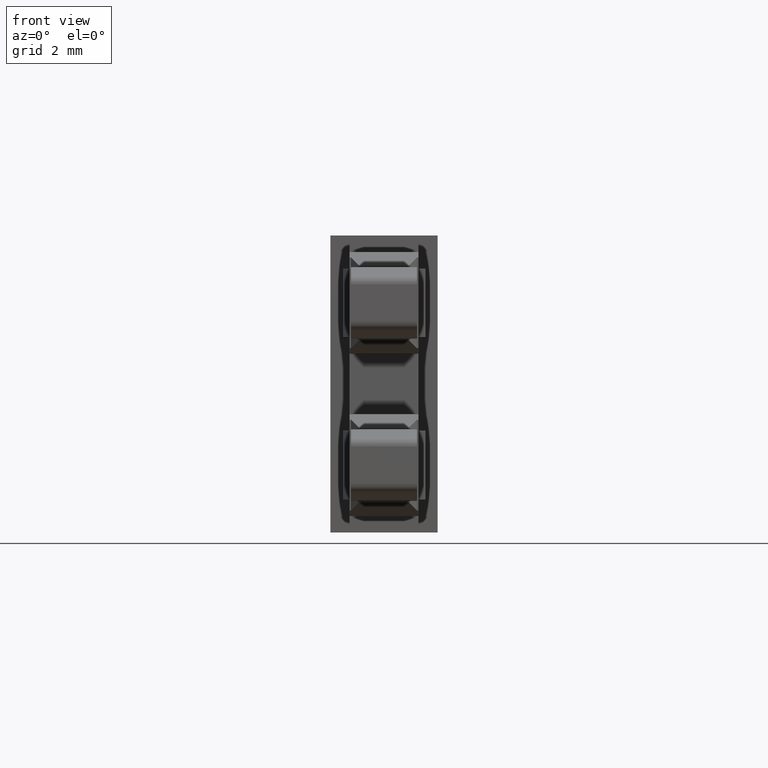
[diagram: clean part render]
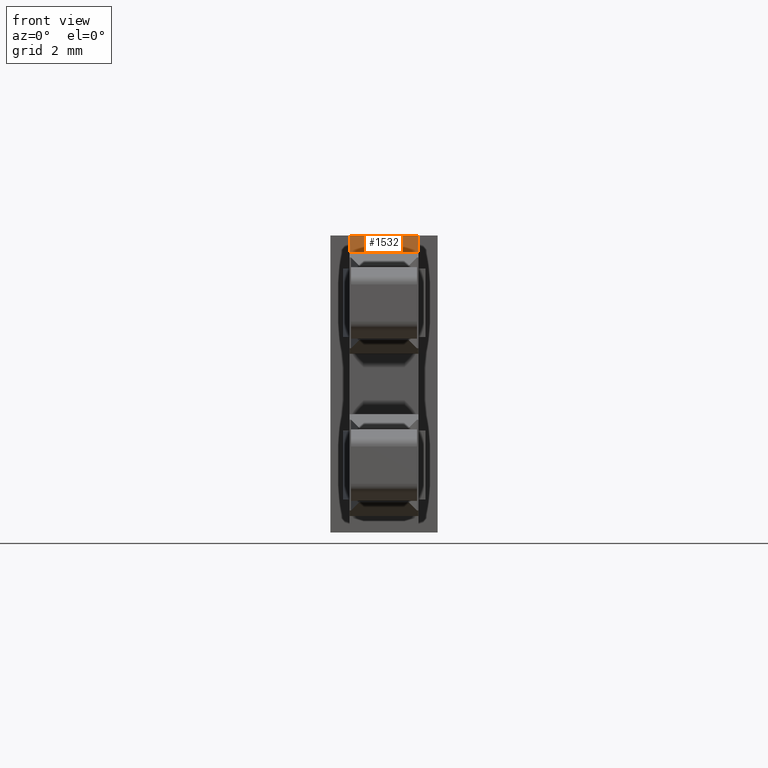
[diagram: same view with one face highlighted and labeled with its STEP entity id]
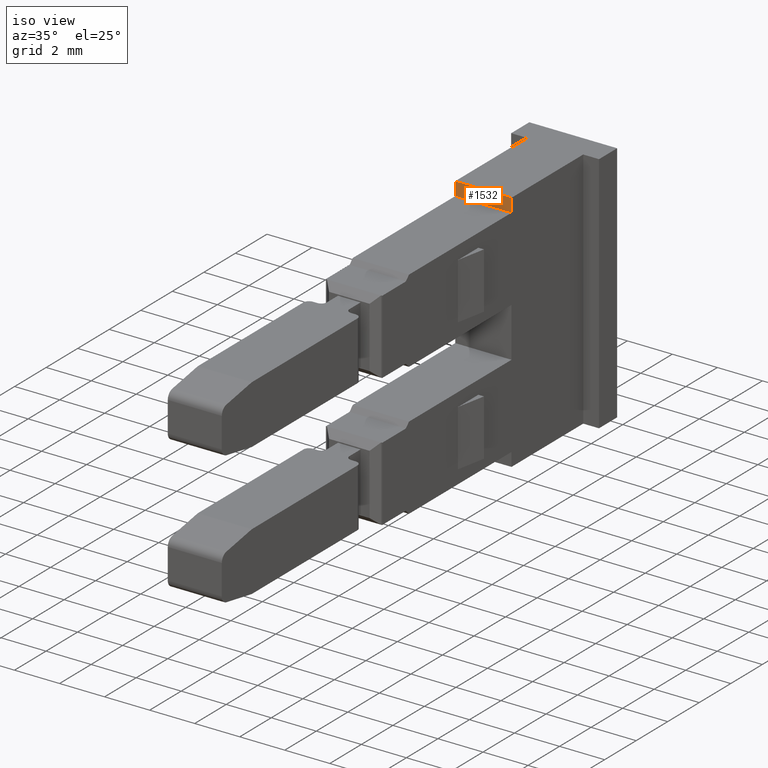
[diagram: same view with one face highlighted and labeled with its STEP entity id]
A machine part, front view. The second image highlights one B-rep face of the part: STEP entity #1532.
A second angle (iso view) of the same face is appended — the face is thin or edge-on in the first view.
In plain terms, the highlighted planar face has unit normal (0, 1, 0).
Its self-contained STEP definition (entity closure, byte-faithful):
#4 = VECTOR ( 'NONE', #2549, 1000.000000000000000 ) ;
#10 = VECTOR ( 'NONE', #2579, 1000.000000000000000 ) ;
#150 = AXIS2_PLACEMENT_3D ( 'NONE', #2014, #2013, #1996 ) ;
#364 = VECTOR ( 'NONE', #2461, 1000.000000000000000 ) ;
#372 = VECTOR ( 'NONE', #2451, 1000.000000000000000 ) ;
#753 = ORIENTED_EDGE ( 'NONE', *, *, #1365, .T. ) ;
#757 = ORIENTED_EDGE ( 'NONE', *, *, #1328, .F. ) ;
#775 = ORIENTED_EDGE ( 'NONE', *, *, #1364, .F. ) ;
#861 = ORIENTED_EDGE ( 'NONE', *, *, #1333, .F. ) ;
#863 = EDGE_LOOP ( 'NONE', ( #861, #775, #757, #753 ) ) ;
#1264 = VERTEX_POINT ( 'NONE', #2313 ) ;
#1282 = VERTEX_POINT ( 'NONE', #2333 ) ;
#1292 = VERTEX_POINT ( 'NONE', #2317 ) ;
#1297 = VERTEX_POINT ( 'NONE', #2327 ) ;
#1328 = EDGE_CURVE ( 'NONE', #1282, #1292, #2473, .T. ) ;
#1333 = EDGE_CURVE ( 'NONE', #1264, #1297, #2482, .T. ) ;
#1364 = EDGE_CURVE ( 'NONE', #1292, #1264, #2570, .T. ) ;
#1365 = EDGE_CURVE ( 'NONE', #1282, #1297, #2560, .T. ) ;
#1532 = ADVANCED_FACE ( 'NONE', ( #2012 ), #2000, .F. ) ;
#1996 = DIRECTION ( 'NONE',  ( -1.000000000000000000, 1.149975400653633700E-012, 0.0000000000000000000 ) ) ;
#2000 = PLANE ( 'NONE',  #150 ) ;
#2012 = FACE_OUTER_BOUND ( 'NONE', #863, .T. ) ;
#2013 = DIRECTION ( 'NONE',  ( 1.149975400653633700E-012, 1.000000000000000000, 9.317217804677289600E-014 ) ) ;
#2014 = CARTESIAN_POINT ( 'NONE',  ( 1457.871626077922200, 1003.994679537512100, -77.04999999999319000 ) ) ;
#2313 = CARTESIAN_POINT ( 'NONE',  ( 1459.267071211366300, 1003.994679537510600, -77.64999999999319900 ) ) ;
#2317 = CARTESIAN_POINT ( 'NONE',  ( 1459.267071211366600, 1003.994679537511200, -77.04999999999304800 ) ) ;
#2327 = CARTESIAN_POINT ( 'NONE',  ( 1456.769071211365800, 1003.994679537512800, -77.64999999999328400 ) ) ;
#2333 = CARTESIAN_POINT ( 'NONE',  ( 1456.769071211365800, 1003.994679537513400, -77.04999999999287800 ) ) ;
#2451 = DIRECTION ( 'NONE',  ( -1.000000000000000000, 4.794056557034578200E-028, -5.145373498329340500E-015 ) ) ;
#2456 = CARTESIAN_POINT ( 'NONE',  ( 1516.460390188475000, 1003.994679537510600, -77.64999999999288600 ) ) ;
#2461 = DIRECTION ( 'NONE',  ( 1.000000000000000000, -4.794056557034578200E-028, 5.145373498329340500E-015 ) ) ;
#2473 = LINE ( 'NONE', #2479, #364 ) ;
#2479 = CARTESIAN_POINT ( 'NONE',  ( 1457.871626077922200, 1003.994679537513400, -77.04999999999317600 ) ) ;
#2482 = LINE ( 'NONE', #2456, #372 ) ;
#2549 = DIRECTION ( 'NONE',  ( 1.071457127791093600E-025, 9.317217804677289600E-014, -1.000000000000000000 ) ) ;
#2553 = CARTESIAN_POINT ( 'NONE',  ( 1456.769071211365800, 1003.994679537513400, -100.1158559843420100 ) ) ;
#2560 = LINE ( 'NONE', #2553, #10 ) ;
#2562 = CARTESIAN_POINT ( 'NONE',  ( 1459.267071211366600, 1003.994679537510600, -77.04999999999319000 ) ) ;
#2570 = LINE ( 'NONE', #2562, #4 ) ;
#2579 = DIRECTION ( 'NONE',  ( 0.0000000000000000000, 0.0000000000000000000, -1.000000000000000000 ) ) ;